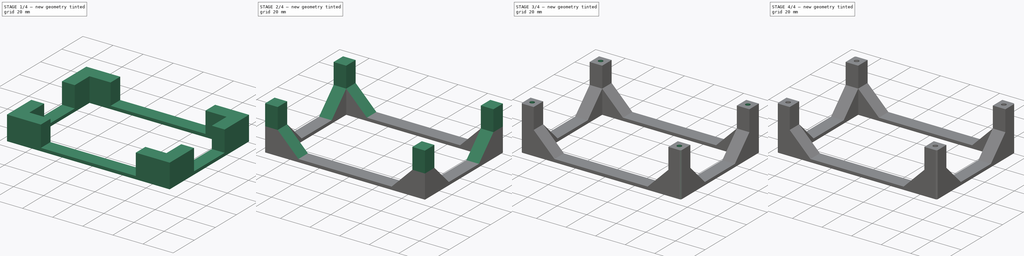
[diagram: build sequence overview — one tinted view per stage of 4, left to right]
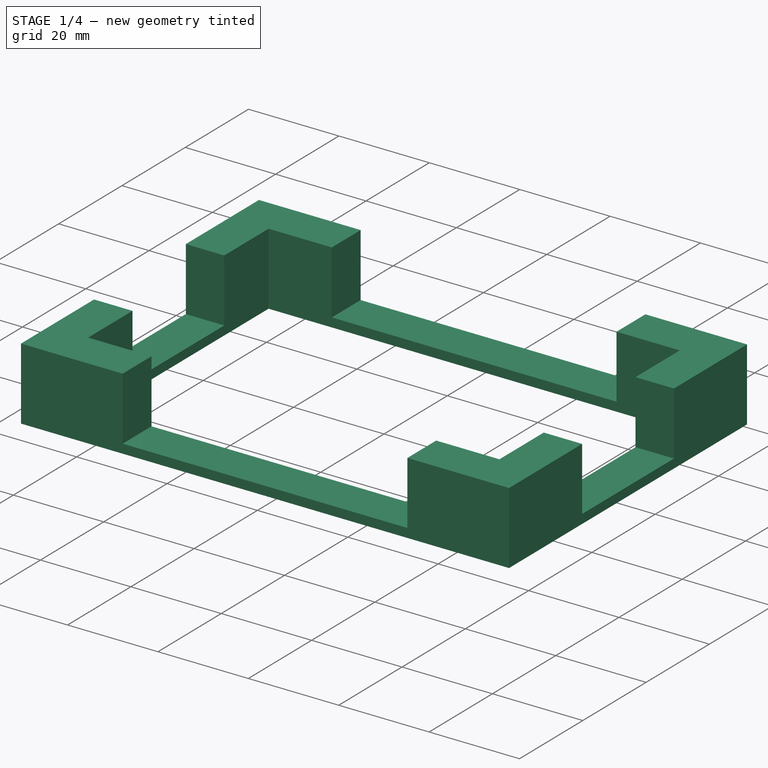
[diagram: stage 1 of 4 — iso view after this stage's code; geometry added in this stage tinted green]
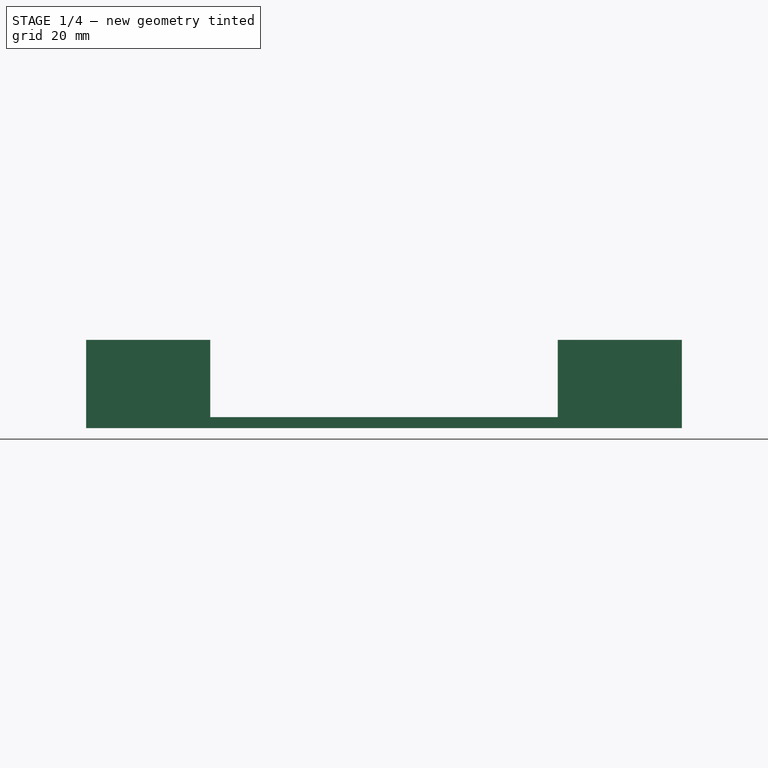
[diagram: stage 1 of 4 — front view after this stage's code; geometry added in this stage tinted green]
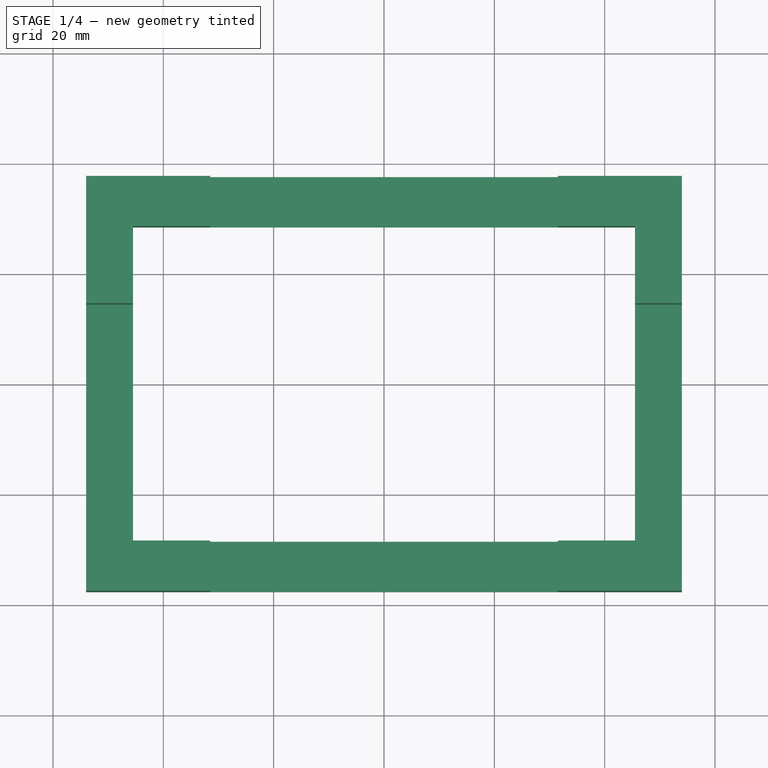
[diagram: stage 1 of 4 — top view after this stage's code; geometry added in this stage tinted green]
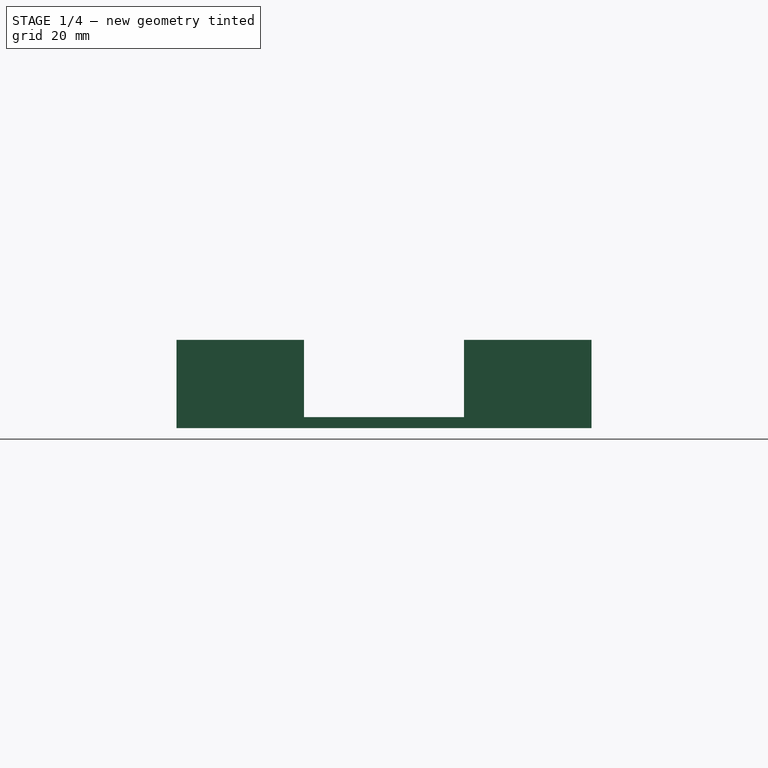
[diagram: stage 1 of 4 — right view after this stage's code; geometry added in this stage tinted green]
FCSTD DOCUMENT  (FreeCAD 0.19R24267 +99 (Git))
Label: LowerPiSupport
License: All rights reserved
LicenseURL: http://en.wikipedia.org/wiki/All_rights_reserved
objects: Sketcher::SketchObject×6, PartDesign::Fillet×4, PartDesign::Pad×3, PartDesign::Pocket×3, Spreadsheet::Sheet×1, PartDesign::Body×1, App::MeasureDistance×1
note: 27 computed .brp shape members not serialized (recipe doc carries the construction recipe); baked Part::Feature solids carry a one-line shape summary decoded from their .brp

FEATURE [Spreadsheet::Sheet] Spreadsheet
  cells = A2=lengthout; B2(lengthout)=108; A3=lengthin; B3(lengthin)=91; A4=widthout; B4(widthout)=75.2; A5=widthin; B5(widthin)=57; A7=screwholes; B7(screwholes)=3.1; A8=heightbase; B8(heightbase)=2; A9=heightcrewthingy; B9(heightcrewthingy)=28; A11=height support; B11(heightsupport)=14; A12=angle support; B12(anglesupport)=45
FEATURE [Sketcher::SketchObject] Sketch
  FullyConstrained = true
  MapMode = 5
  Support = -> [XY_Plane]
  expr: Constraints[16] = Spreadsheet.lengthin
  expr: Constraints[17] = Spreadsheet.widthin
  expr: Constraints[22] = Spreadsheet.lengthout / 2
  expr: Constraints[18] = Spreadsheet.lengthin / 2
  expr: Constraints[19] = Spreadsheet.widthin / 2
  expr: Constraints[23] = Spreadsheet.lengthout
  expr: Constraints[20] = Spreadsheet.widthout / 2
  expr: Constraints[21] = Spreadsheet.widthout
  sketch-geometry (8):
    g0: LineSegment StartX=-54 StartY=37.6 StartZ=0 EndX=54 EndY=37.6 EndZ=0
    g1: LineSegment StartX=54 StartY=37.6 StartZ=0 EndX=54 EndY=-37.6 EndZ=0
    g2: LineSegment StartX=54 StartY=-37.6 StartZ=0 EndX=-54 EndY=-37.6 EndZ=0
    g3: LineSegment StartX=-54 StartY=-37.6 StartZ=0 EndX=-54 EndY=37.6 EndZ=0
    g4: LineSegment StartX=-45.5 StartY=28.5 StartZ=0 EndX=45.5 EndY=28.5 EndZ=0
    g5: LineSegment StartX=45.5 StartY=28.5 StartZ=0 EndX=45.5 EndY=-28.5 EndZ=0
    g6: LineSegment StartX=45.5 StartY=-28.5 StartZ=0 EndX=-45.5 EndY=-28.5 EndZ=0
    g7: LineSegment StartX=-45.5 StartY=-28.5 StartZ=0 EndX=-45.5 EndY=28.5 EndZ=0
  constraints (24):
    c: Coincident(g0,g1)
    c: Coincident(g1,g2)
    c: Coincident(g2,g3)
    c: Coincident(g3,g0)
    c: Horizontal(g0)
    c: Horizontal(g2)
    c: Vertical(g1)
    c: Vertical(g3)
    c: Coincident(g4,g5)
    c: Coincident(g5,g6)
    c: Coincident(g6,g7)
    c: Coincident(g7,g4)
    c: Horizontal(g4)
    c: Horizontal(g6)
    c: Vertical(g5)
    c: Vertical(g7)
    c: DistanceX(g4,g4) = 91
    c: DistanceY(g5,g4) = 57
    c: DistanceX(g4,g-1) = 45.5
    c: DistanceY(g-1,g4) = 28.5
    c: DistanceY(g-1,g0) = 37.6
    c: DistanceY(g1,g1) = 75.2
    c: DistanceX(g0,g-1) = 54
    c: DistanceX(g0,g0) = 108
FEATURE [PartDesign::Pad] Pad
  Direction = (1,1,1)
  Length = 2
  Length2 = 100
  Profile = -> Sketch
  Type = 0
  expr: Length = Spreadsheet.heightbase
FEATURE [Sketcher::SketchObject] Sketch001
  FullyConstrained = true
  MapMode = 5
  Placement = pos=(0,0,2) rot=(0,0,1;0rad)
  Support = -> [Pad]
  expr: Constraints[70] = Spreadsheet.widthout / 2
  expr: Constraints[55] = Spreadsheet.lengthin / 2
  expr: Constraints[69] = Spreadsheet.widthout / 2
  expr: Constraints[63] = Spreadsheet.lengthout / 2
  expr: Constraints[49] = tan(Spreadsheet.anglesupport) * Spreadsheet.heightsupport
  expr: Constraints[65] = Spreadsheet.lengthout / 2
  expr: Constraints[64] = Spreadsheet.lengthout / 2
  expr: Constraints[62] = Spreadsheet.widthin / 2
  expr: Constraints[61] = Spreadsheet.widthin / 2
  expr: Constraints[60] = Spreadsheet.widthin / 2
  expr: Constraints[57] = Spreadsheet.lengthin / 2
  expr: Constraints[54] = Spreadsheet.lengthin / 2
  expr: Constraints[53] = tan(Spreadsheet.anglesupport) * Spreadsheet.heightsupport
  expr: Constraints[66] = Spreadsheet.lengthout / 2
  expr: Constraints[51] = tan(Spreadsheet.anglesupport) * Spreadsheet.heightsupport
  expr: Constraints[50] = tan(Spreadsheet.anglesupport) * Spreadsheet.heightsupport
  expr: Constraints[52] = tan(Spreadsheet.anglesupport) * Spreadsheet.heightsupport
  expr: Constraints[56] = Spreadsheet.lengthin / 2
  expr: Constraints[68] = Spreadsheet.widthout / 2
  expr: Constraints[48] = tan(Spreadsheet.anglesupport) * Spreadsheet.heightsupport
  expr: Constraints[59] = Spreadsheet.widthin / 2
  expr: Constraints[47] = tan(Spreadsheet.anglesupport) * Spreadsheet.heightsupport
  expr: Constraints[67] = Spreadsheet.widthout / 2
  expr: Constraints[46] = tan(Spreadsheet.anglesupport) * Spreadsheet.heightsupport
  sketch-geometry (24):
    g0: LineSegment StartX=-54 StartY=37.6 StartZ=0 EndX=-54 EndY=14.5 EndZ=0
    g1: LineSegment StartX=-54 StartY=14.5 StartZ=0 EndX=-45.5 EndY=14.5 EndZ=0
    g2: LineSegment StartX=-45.5 StartY=14.5 StartZ=0 EndX=-45.5 EndY=28.5 EndZ=0
    g3: LineSegment StartX=-45.5 StartY=28.5 StartZ=0 EndX=-31.5 EndY=28.5 EndZ=0
    g4: LineSegment StartX=-31.5 StartY=28.5 StartZ=0 EndX=-31.5 EndY=37.6 EndZ=0
    g5: LineSegment StartX=-31.5 StartY=37.6 StartZ=0 EndX=-54 EndY=37.6 EndZ=0
    g6: LineSegment StartX=31.5 StartY=37.6 StartZ=0 EndX=54 EndY=37.6 EndZ=0
    g7: LineSegment StartX=54 StartY=37.6 StartZ=0 EndX=54 EndY=14.5 EndZ=0
    g8: LineSegment StartX=54 StartY=14.5 StartZ=0 EndX=45.5 EndY=14.5 EndZ=0
    g9: LineSegment StartX=45.5 StartY=14.5 StartZ=0 EndX=45.5 EndY=28.5 EndZ=0
    g10: LineSegment StartX=45.5 StartY=28.5 StartZ=0 EndX=31.5 EndY=28.5 EndZ=0
    g11: LineSegment StartX=31.5 StartY=28.5 StartZ=0 EndX=31.5 EndY=37.6 EndZ=0
    g12: LineSegment StartX=45.5 StartY=-14.5 StartZ=0 EndX=45.5 EndY=-28.5 EndZ=0
    g13: LineSegment StartX=45.5 StartY=-28.5 StartZ=0 EndX=31.5 EndY=-28.5 EndZ=0
    g14: LineSegment StartX=31.5 StartY=-28.5 StartZ=0 EndX=31.5 EndY=-37.6 EndZ=0
    g15: LineSegment StartX=31.5 StartY=-37.6 StartZ=0 EndX=54 EndY=-37.6 EndZ=0
    g16: LineSegment StartX=54 StartY=-37.6 StartZ=0 EndX=54 EndY=-14.5 EndZ=0
    g17: LineSegment StartX=54 StartY=-14.5 StartZ=0 EndX=45.5 EndY=-14.5 EndZ=0
    g18: LineSegment StartX=-31.5 StartY=-28.5 StartZ=0 EndX=-45.5 EndY=-28.5 EndZ=0
    g19: LineSegment StartX=-45.5 StartY=-28.5 StartZ=0 EndX=-45.5 EndY=-14.5 EndZ=0
    g20: LineSegment StartX=-45.5 StartY=-14.5 StartZ=0 EndX=-54 EndY=-14.5 EndZ=0
    g21: LineSegment StartX=-54 StartY=-14.5 StartZ=0 EndX=-54 EndY=-37.6 EndZ=0
    g22: LineSegment StartX=-54 StartY=-37.6 StartZ=0 EndX=-31.5 EndY=-37.6 EndZ=0
    g23: LineSegment StartX=-31.5 StartY=-37.6 StartZ=0 EndX=-31.5 EndY=-28.5 EndZ=0
  constraints (72):
    c: Vertical(g0)
    c: Coincident(g1,g0)
    c: Horizontal(g1)
    c: Coincident(g2,g1)
    c: Vertical(g2)
    c: Coincident(g3,g2)
    c: Horizontal(g3)
    c: Coincident(g4,g3)
    c: Vertical(g4)
    c: Coincident(g5,g0)
    c: Horizontal(g5)
    c: Horizontal(g6)
    c: Coincident(g7,g6)
    c: Vertical(g7)
    c: Coincident(g8,g7)
    c: Horizontal(g8)
    c: Coincident(g9,g8)
    c: Vertical(g9)
    c: Coincident(g10,g9)
    c: Horizontal(g10)
    c: Coincident(g11,g10)
    c: Coincident(g11,g6)
    c: Vertical(g12)
    c: Coincident(g13,g12)
    c: Coincident(g13,g14)
    c: Vertical(g14)
    c: Coincident(g14,g15)
    c: Horizontal(g15)
    c: Coincident(g15,g16)
    c: Vertical(g16)
    c: Coincident(g16,g17)
    c: Coincident(g17,g12)
    c: Horizontal(g17)
    c: Horizontal(g18)
    c: Coincident(g18,g19)
    c: Vertical(g19)
    c: Coincident(g19,g20)
    c: Coincident(g20,g21)
    c: Vertical(g21)
    c: Coincident(g21,g22)
    c: Horizontal(g22)
    c: Coincident(g22,g23)
    c: Coincident(g23,g18)
    c: Vertical(g23)
    c: Horizontal(g13)
    c: Horizontal(g20)
    c: DistanceX(g13,g13) = 14
    c: DistanceX(g10,g10) = 14
    c: DistanceX(g3,g3) = 14
    c: DistanceX(g18,g18) = 14
    c: DistanceY(g9,g9) = 14
    c: DistanceY(g12,g12) = 14
    c: DistanceY(g2,g2) = 14
    c: DistanceY(g19,g19) = 14
    c: DistanceX(g-1,g12) = 45.5
    c: DistanceX(g-1,g8) = 45.5
    c: DistanceX(g1,g-1) = 45.5
    c: DistanceX(g19,g-1) = 45.5
    c: Vertical(g11)
    c: DistanceY(g-1,g10) = 28.5
    c: DistanceY(g13,g-1) = 28.5
    c: DistanceY(g18,g-1) = 28.5
    c: DistanceY(g-1,g3) = 28.5
    c: DistanceX(g-1,g7) = 54
    c: DistanceX(g-1,g16) = 54
    c: DistanceX(g20,g-1) = 54
    c: DistanceX(g0,g-1) = 54
    c: DistanceY(g-1,g4) = 37.6
    c: DistanceY(g-1,g6) = 37.6
    c: DistanceY(g14,g-1) = 37.6
    c: DistanceY(g22,g-1) = 37.6
    c: Coincident(g5,g4)
FEATURE [PartDesign::Pad] Pad001
  BaseFeature = -> Pad
  Direction = (1,1,1)
  Length = 14
  Length2 = 100
  Profile = -> Sketch001
  Type = 0
  expr: Length = Spreadsheet.heightsupport
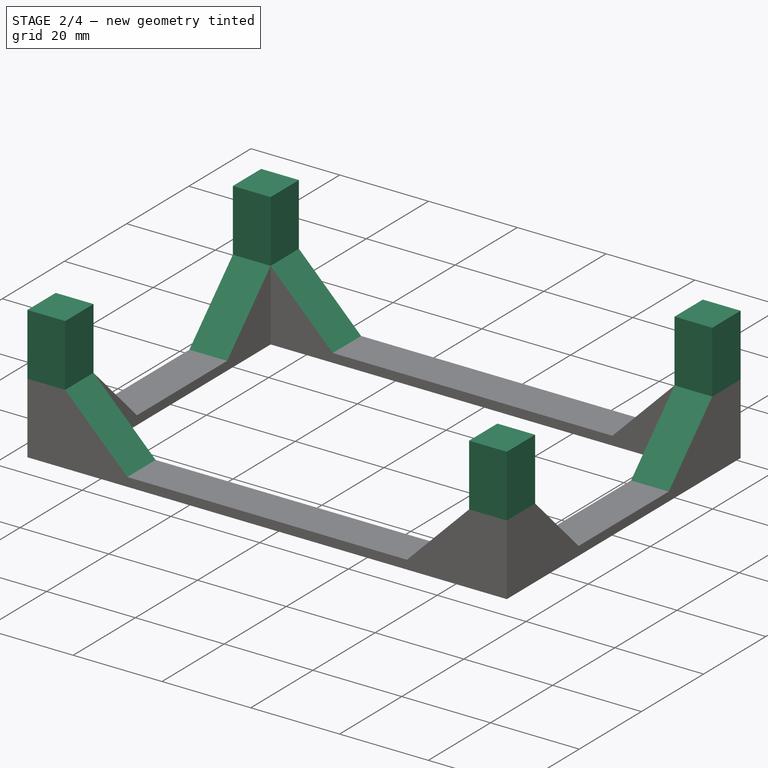
[diagram: stage 2 of 4 — iso view after this stage's code; geometry added in this stage tinted green]
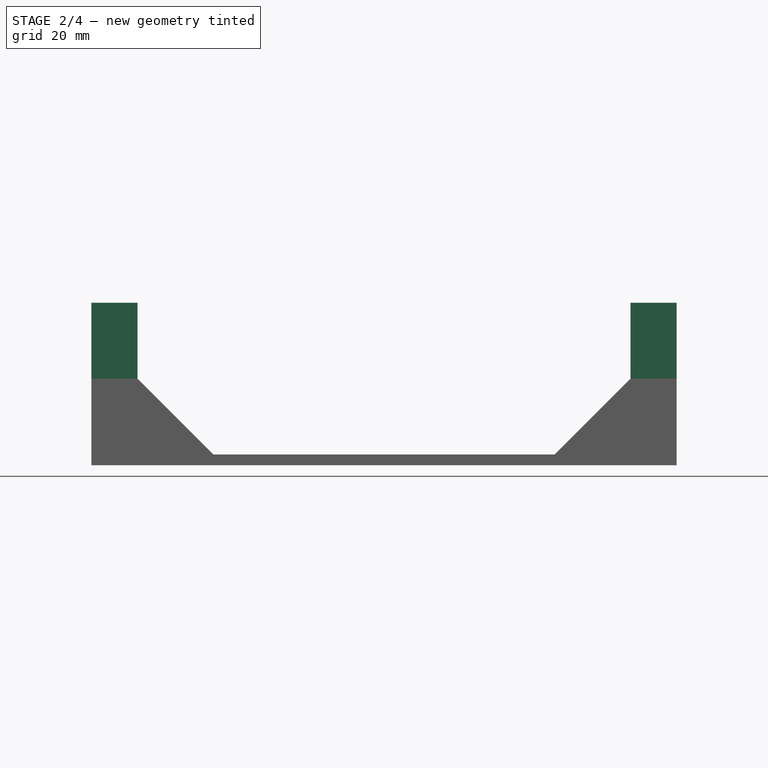
[diagram: stage 2 of 4 — front view after this stage's code; geometry added in this stage tinted green]
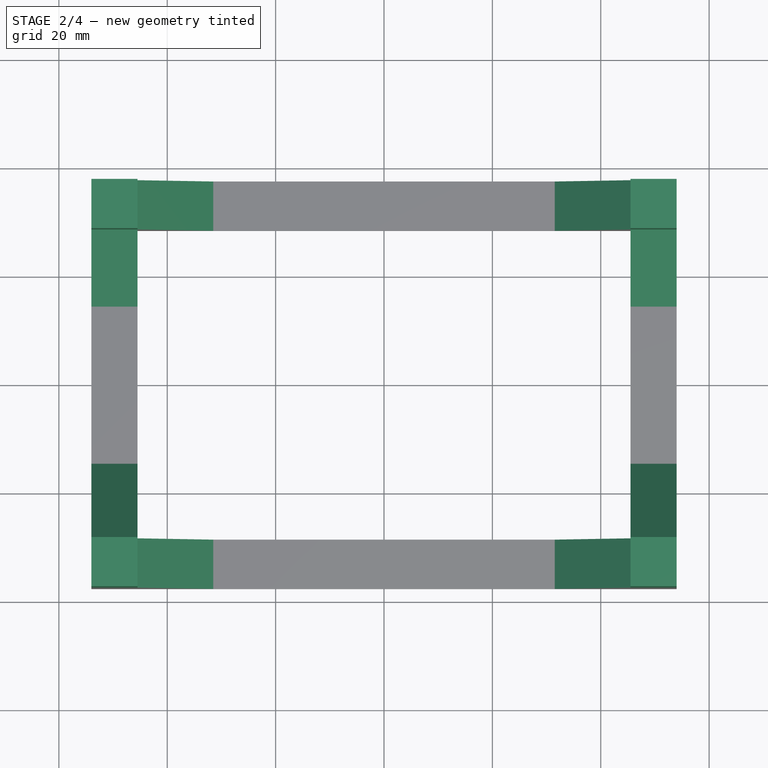
[diagram: stage 2 of 4 — top view after this stage's code; geometry added in this stage tinted green]
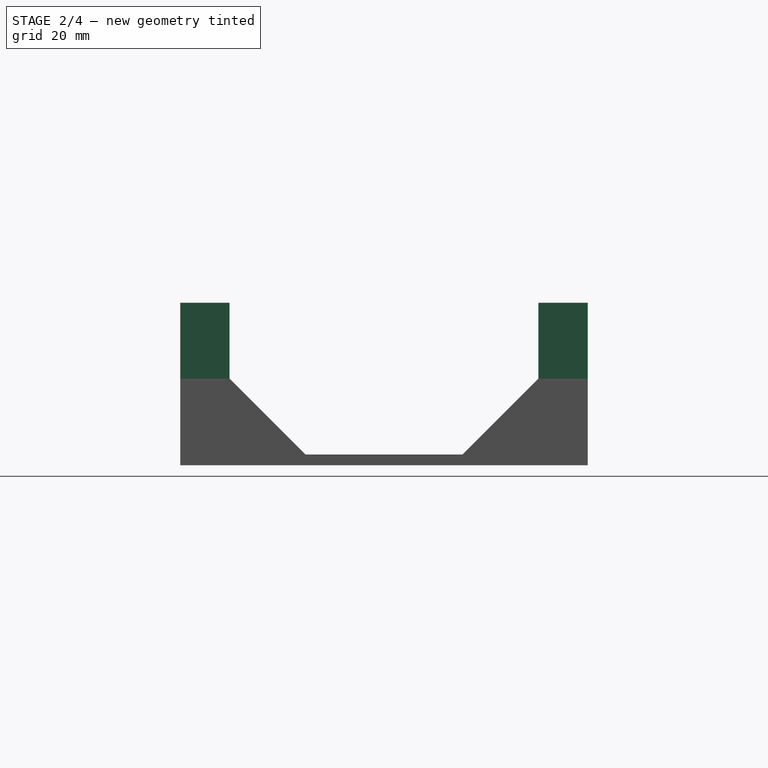
[diagram: stage 2 of 4 — right view after this stage's code; geometry added in this stage tinted green]
FEATURE [Sketcher::SketchObject] Sketch002
  FullyConstrained = true
  MapMode = 5
  Placement = pos=(0,-37.6,0) rot=(1,0,0;1.5708rad)
  Support = -> [Pad001]
  expr: Constraints[16] = Spreadsheet.anglesupport
  expr: Constraints[15] = Spreadsheet.heightsupport
  expr: Constraints[17] = Spreadsheet.anglesupport
  expr: Constraints[14] = Spreadsheet.heightbase
  expr: Constraints[13] = Spreadsheet.heightbase
  expr: Constraints[12] = Spreadsheet.heightsupport
  expr: Constraints[11] = Spreadsheet.lengthin / 2 - tan(Spreadsheet.anglesupport) * Spreadsheet.heightsupport
  expr: Constraints[10] = Spreadsheet.lengthin / 2 - tan(Spreadsheet.anglesupport) * Spreadsheet.heightsupport
  sketch-geometry (6):
    g0: LineSegment StartX=-45.5 StartY=16 StartZ=0 EndX=-31.5 EndY=16 EndZ=0
    g1: LineSegment StartX=-31.5 StartY=16 StartZ=0 EndX=-31.5 EndY=2 EndZ=0
    g2: LineSegment StartX=-31.5 StartY=2 StartZ=0 EndX=-45.5 EndY=16 EndZ=0
    g3: LineSegment StartX=31.5 StartY=16 StartZ=0 EndX=31.5 EndY=2 EndZ=0
    g4: LineSegment StartX=31.5 StartY=2 StartZ=0 EndX=45.5 EndY=16 EndZ=0
    g5: LineSegment StartX=45.5 StartY=16 StartZ=0 EndX=31.5 EndY=16 EndZ=0
  constraints (18):
    c: Coincident(g0,g1)
    c: Vertical(g1)
    c: Coincident(g1,g2)
    c: Coincident(g2,g0)
    c: Vertical(g3)
    c: Coincident(g3,g4)
    c: Coincident(g4,g5)
    c: Coincident(g5,g3)
    c: Horizontal(g5)
    c: Horizontal(g0)
    c: DistanceX(g-1,g3) = 31.5
    c: DistanceX(g1,g-1) = 31.5
    c: DistanceY(g3,g3) = 14
    c: DistanceY(g-1,g3) = 2
    c: DistanceY(g-1,g1) = 2
    c: DistanceY(g1,g1) = 14
    c: Angle(g4,g3) = 0.785398
    c: Angle(g1,g2) = 0.785398
FEATURE [PartDesign::Pocket] Pocket
  BaseFeature = -> Pad001
  Length = 75.2
  Length2 = 100
  Profile = -> Sketch002
  Type = 0
  expr: Length = Spreadsheet.widthout
FEATURE [Sketcher::SketchObject] Sketch003
  FullyConstrained = true
  MapMode = 5
  Placement = pos=(54,0,0) rot=(0.57735,0.57735,0.57735;2.0944rad)
  Support = -> [Pocket]
  expr: Constraints[9] = Spreadsheet.heightsupport
  expr: Constraints[14] = Spreadsheet.widthin / 2 - tan(Spreadsheet.anglesupport) * Spreadsheet.heightsupport
  expr: Constraints[17] = Spreadsheet.anglesupport
  expr: Constraints[10] = Spreadsheet.heightsupport
  expr: Constraints[11] = Spreadsheet.heightbase
  expr: Constraints[13] = Spreadsheet.heightbase
  expr: Constraints[15] = Spreadsheet.widthin / 2 - tan(Spreadsheet.anglesupport) * Spreadsheet.heightsupport
  expr: Constraints[16] = Spreadsheet.anglesupport
  sketch-geometry (6):
    g0: LineSegment StartX=-28.5 StartY=16 StartZ=0 EndX=-14.5 EndY=16 EndZ=0
    g1: LineSegment StartX=-14.5 StartY=16 StartZ=0 EndX=-14.5 EndY=2 EndZ=0
    g2: LineSegment StartX=-14.5 StartY=2 StartZ=0 EndX=-28.5 EndY=16 EndZ=0
    g3: LineSegment StartX=14.5 StartY=2 StartZ=0 EndX=14.5 EndY=16 EndZ=0
    g4: LineSegment StartX=14.5 StartY=16 StartZ=0 EndX=28.5 EndY=16 EndZ=0
    g5: LineSegment StartX=28.5 StartY=16 StartZ=0 EndX=14.5 EndY=2 EndZ=0
  constraints (18):
    c: Horizontal(g0)
    c: Coincident(g0,g1)
    c: Vertical(g1)
    c: Coincident(g1,g2)
    c: Coincident(g2,g0)
    c: Horizontal(g4)
    c: Coincident(g4,g5)
    c: Coincident(g4,g3)
    c: Vertical(g3)
    c: DistanceY(g3,g3) = 14
    c: DistanceY(g1,g1) = 14
    c: DistanceY(g-1,g3) = 2
    c: Coincident(g5,g3)
    c: DistanceY(g-1,g1) = 2
    c: DistanceX(g-1,g3) = 14.5
    c: DistanceX(g1,g-1) = 14.5
    c: Angle(g5,g3) = 0.785398
    c: Angle(g1,g2) = 0.785398
FEATURE [PartDesign::Pocket] Pocket001
  BaseFeature = -> Pocket
  Length = 108
  Length2 = 100
  Profile = -> Sketch003
  Type = 0
  expr: Length = Spreadsheet.lengthout
FEATURE [Sketcher::SketchObject] Sketch004
  FullyConstrained = true
  MapMode = 5
  Placement = pos=(0,0,16) rot=(0,0,1;0rad)
  Support = -> [Pocket001]
  expr: Constraints[32] = Spreadsheet.lengthin / 2
  expr: Constraints[38] = Spreadsheet.lengthout / 2
  expr: Constraints[33] = Spreadsheet.lengthin / 2
  expr: Constraints[45] = Spreadsheet.widthin / 2
  expr: Constraints[34] = Spreadsheet.lengthin / 2
  expr: Constraints[36] = Spreadsheet.lengthout / 2
  expr: Constraints[43] = Spreadsheet.widthout / 2
  expr: Constraints[35] = Spreadsheet.lengthin / 2
  expr: Constraints[37] = Spreadsheet.lengthout / 2
  expr: Constraints[39] = Spreadsheet.lengthout / 2
  expr: Constraints[40] = Spreadsheet.widthout / 2
  expr: Constraints[41] = Spreadsheet.widthout / 2
  expr: Constraints[42] = Spreadsheet.widthout / 2
  expr: Constraints[44] = Spreadsheet.widthin / 2
  expr: Constraints[46] = Spreadsheet.widthin / 2
  expr: Constraints[47] = Spreadsheet.widthin / 2
  sketch-geometry (16):
    g0: LineSegment StartX=-54 StartY=37.6 StartZ=0 EndX=-45.5 EndY=37.6 EndZ=0
    g1: LineSegment StartX=-45.5 StartY=37.6 StartZ=0 EndX=-45.5 EndY=28.5 EndZ=0
    g2: LineSegment StartX=-45.5 StartY=28.5 StartZ=0 EndX=-54 EndY=28.5 EndZ=0
    g3: LineSegment StartX=-54 StartY=28.5 StartZ=0 EndX=-54 EndY=37.6 EndZ=0
    g4: LineSegment StartX=45.5 StartY=37.6 StartZ=0 EndX=54 EndY=37.6 EndZ=0
    g5: LineSegment StartX=54 StartY=37.6 StartZ=0 EndX=54 EndY=28.5 EndZ=0
    g6: LineSegment StartX=54 StartY=28.5 StartZ=0 EndX=45.5 EndY=28.5 EndZ=0
    g7: LineSegment StartX=45.5 StartY=28.5 StartZ=0 EndX=45.5 EndY=37.6 EndZ=0
    g8: LineSegment StartX=45.5 StartY=-28.5 StartZ=0 EndX=54 EndY=-28.5 EndZ=0
    g9: LineSegment StartX=54 StartY=-28.5 StartZ=0 EndX=54 EndY=-37.6 EndZ=0
    g10: LineSegment StartX=54 StartY=-37.6 StartZ=0 EndX=45.5 EndY=-37.6 EndZ=0
    g11: LineSegment StartX=45.5 StartY=-37.6 StartZ=0 EndX=45.5 EndY=-28.5 EndZ=0
    g12: LineSegment StartX=-54 StartY=-28.5 StartZ=0 EndX=-45.5 EndY=-28.5 EndZ=0
    g13: LineSegment StartX=-45.5 StartY=-28.5 StartZ=0 EndX=-45.5 EndY=-37.6 EndZ=0
    g14: LineSegment StartX=-45.5 StartY=-37.6 StartZ=0 EndX=-54 EndY=-37.6 EndZ=0
    g15: LineSegment StartX=-54 StartY=-37.6 StartZ=0 EndX=-54 EndY=-28.5 EndZ=0
  constraints (48):
    c: Coincident(g0,g1)
    c: Coincident(g1,g2)
    c: Coincident(g2,g3)
    c: Coincident(g3,g0)
    c: Horizontal(g0)
    c: Horizontal(g2)
    c: Vertical(g1)
    c: Vertical(g3)
    c: Coincident(g4,g5)
    c: Coincident(g5,g6)
    c: Coincident(g6,g7)
    c: Coincident(g7,g4)
    c: Horizontal(g4)
    c: Horizontal(g6)
    c: Vertical(g5)
    c: Vertical(g7)
    c: Coincident(g8,g9)
    c: Coincident(g9,g10)
    c: Coincident(g10,g11)
    c: Coincident(g11,g8)
    c: Horizontal(g8)
    c: Horizontal(g10)
    c: Vertical(g9)
    c: Vertical(g11)
    c: Coincident(g12,g13)
    c: Coincident(g13,g14)
    c: Coincident(g14,g15)
    c: Coincident(g15,g12)
    c: Horizontal(g12)
    c: Horizontal(g14)
    c: Vertical(g13)
    c: Vertical(g15)
    c: DistanceX(g1,g-1) = 45.5
    c: DistanceX(g-1,g6) = 45.5
    c: DistanceX(g-1,g8) = 45.5
    c: DistanceX(g12,g-1) = 45.5
    c: DistanceX(g0,g-1) = 54
    c: DistanceX(g-1,g4) = 54
    c: DistanceX(g-1,g9) = 54
    c: DistanceX(g14,g-1) = 54
    c: DistanceY(g-1,g0) = 37.6
    c: DistanceY(g-1,g4) = 37.6
    c: DistanceY(g9,g-1) = 37.6
    c: DistanceY(g14,g-1) = 37.6
    c: DistanceY(g-1,g1) = 28.5
    c: DistanceY(g-1,g6) = 28.5
    c: DistanceY(g8,g-1) = 28.5
    c: DistanceY(g12,g-1) = 28.5
FEATURE [PartDesign::Pad] Pad002
  BaseFeature = -> Pocket001
  Direction = (1,1,1)
  Length = 14
  Length2 = 100
  Profile = -> Sketch004
  Type = 0
  expr: Length = Spreadsheet.heightcrewthingy - Spreadsheet.heightsupport
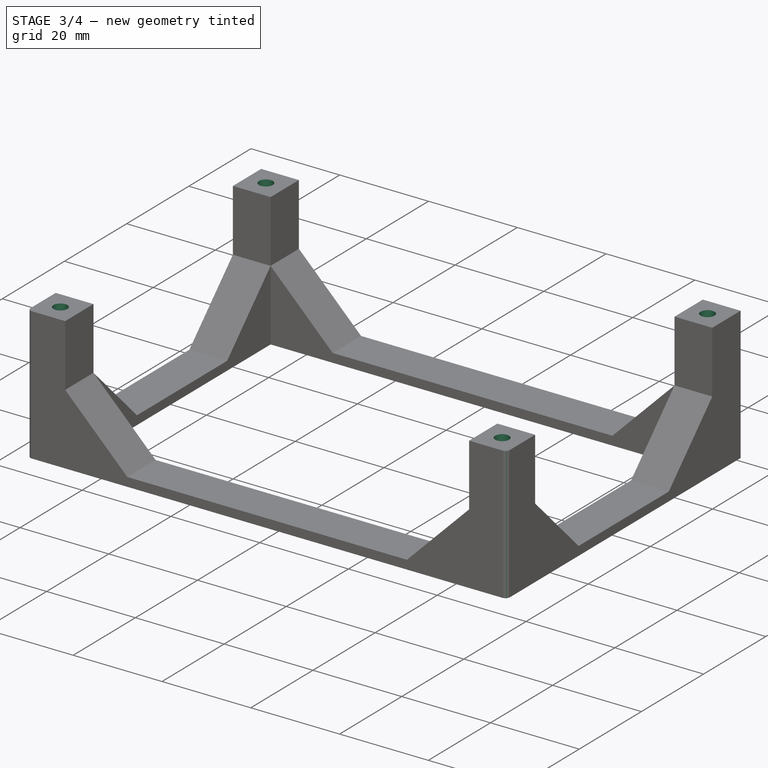
[diagram: stage 3 of 4 — iso view after this stage's code; geometry added in this stage tinted green]
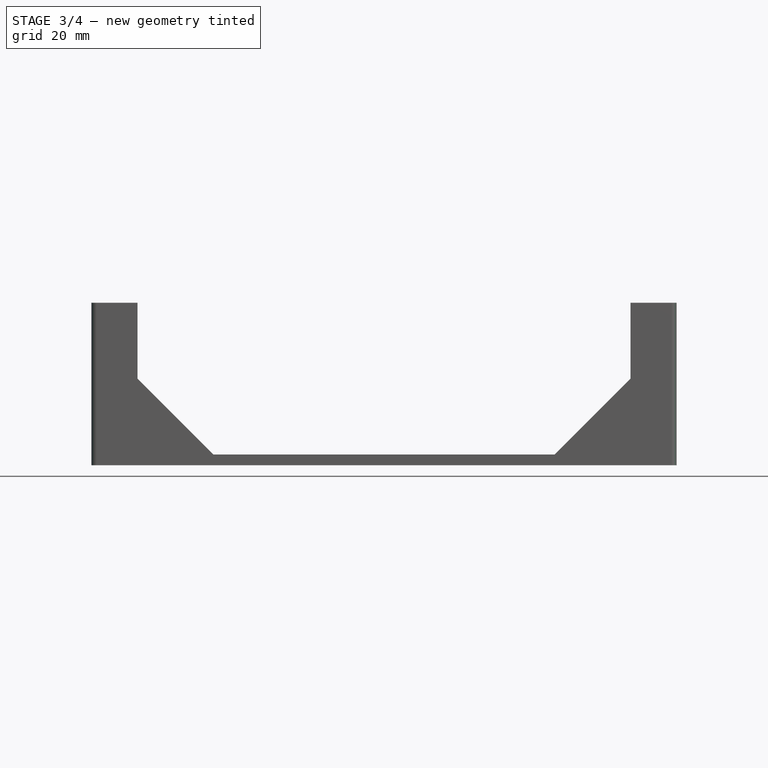
[diagram: stage 3 of 4 — front view after this stage's code; geometry added in this stage tinted green]
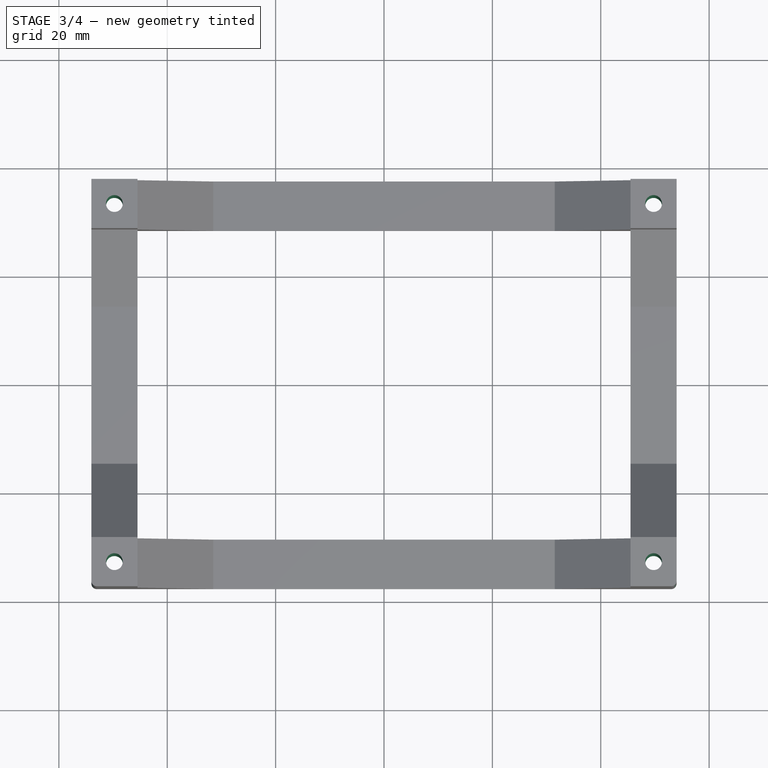
[diagram: stage 3 of 4 — top view after this stage's code; geometry added in this stage tinted green]
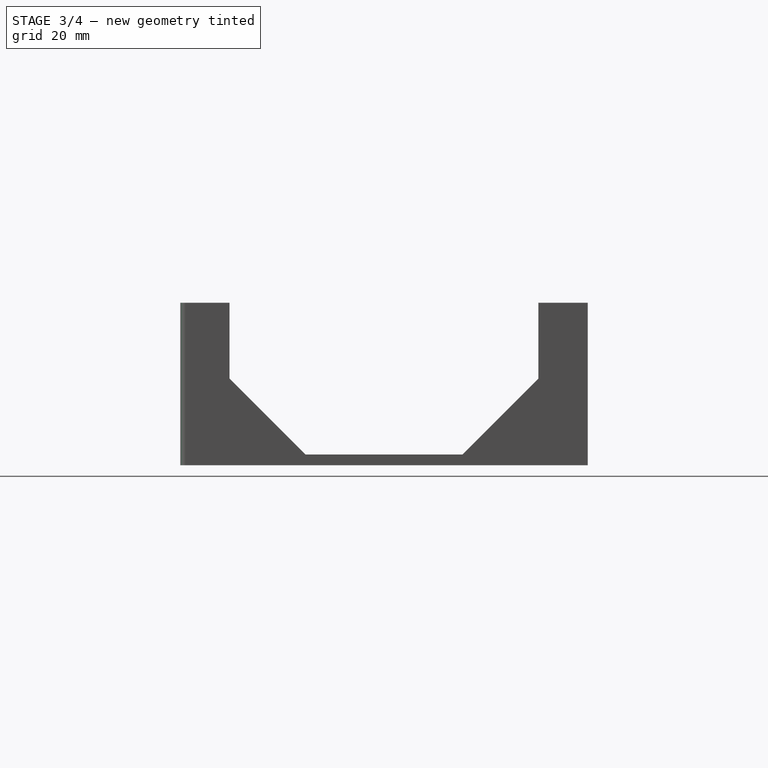
[diagram: stage 3 of 4 — right view after this stage's code; geometry added in this stage tinted green]
FEATURE [Sketcher::SketchObject] Sketch005
  FullyConstrained = true
  MapMode = 5
  Placement = pos=(0,0,30) rot=(0,0,1;0rad)
  Support = -> [Pad002]
  expr: Constraints[0] = Spreadsheet.screwholes / 2
  expr: Constraints[1] = Spreadsheet.screwholes / 2
  expr: Constraints[2] = Spreadsheet.screwholes / 2
  expr: Constraints[5] = Spreadsheet.lengthin / 2 + (Spreadsheet.lengthout - Spreadsheet.lengthin) / 4
  expr: Constraints[10] = Spreadsheet.widthin / 2 + (Spreadsheet.widthout - Spreadsheet.widthin) / 4
  expr: Constraints[3] = Spreadsheet.screwholes / 2
  expr: Constraints[4] = Spreadsheet.lengthin / 2 + (Spreadsheet.lengthout - Spreadsheet.lengthin) / 4
  expr: Constraints[6] = Spreadsheet.lengthin / 2 + (Spreadsheet.lengthout - Spreadsheet.lengthin) / 4
  expr: Constraints[7] = Spreadsheet.lengthin / 2 + (Spreadsheet.lengthout - Spreadsheet.lengthin) / 4
  expr: Constraints[8] = Spreadsheet.widthin / 2 + (Spreadsheet.widthout - Spreadsheet.widthin) / 4
  expr: Constraints[9] = Spreadsheet.widthin / 2 + (Spreadsheet.widthout - Spreadsheet.widthin) / 4
  expr: Constraints[11] = Spreadsheet.widthin / 2 + (Spreadsheet.widthout - Spreadsheet.widthin) / 4
  sketch-geometry (4):
    g0: Circle CenterX=-49.75 CenterY=33.05 CenterZ=0 NormalX=0 NormalY=0 NormalZ=1 AngleXU=0 Radius=1.55
    g1: Circle CenterX=49.75 CenterY=33.05 CenterZ=0 NormalX=0 NormalY=0 NormalZ=1 AngleXU=0 Radius=1.55
    g2: Circle CenterX=49.75 CenterY=-33.05 CenterZ=0 NormalX=0 NormalY=0 NormalZ=1 AngleXU=0 Radius=1.55
    g3: Circle CenterX=-49.75 CenterY=-33.05 CenterZ=0 NormalX=0 NormalY=0 NormalZ=1 AngleXU=0 Radius=1.55
  constraints (12):
    c: Radius(g1) = 1.55
    c: Radius(g2) = 1.55
    c: Radius(g3) = 1.55
    c: Radius(g0) = 1.55
    c: DistanceX(g0,g-1) = 49.75
    c: DistanceX(g-1,g1) = 49.75
    c: DistanceX(g-1,g2) = 49.75
    c: DistanceX(g3,g-1) = 49.75
    c: DistanceY(g-1,g0) = 33.05
    c: DistanceY(g-1,g1) = 33.05
    c: DistanceY(g2,g-1) = 33.05
    c: DistanceY(g3,g-1) = 33.05
FEATURE [PartDesign::Pocket] Pocket002
  BaseFeature = -> Pad002
  Length = 30
  Length2 = 100
  Profile = -> Sketch005
  Type = 0
  expr: Length = Spreadsheet.heightcrewthingy + Spreadsheet.heightbase
FEATURE [PartDesign::Fillet] Fillet
  Base = -> Pocket002 [Edge91]
  BaseFeature = -> Pocket002
  Radius = 1
  SupportTransform = false
FEATURE [PartDesign::Fillet] Fillet001
  Base = -> Fillet [Edge131]
  BaseFeature = -> Fillet
  Radius = 1
  SupportTransform = false
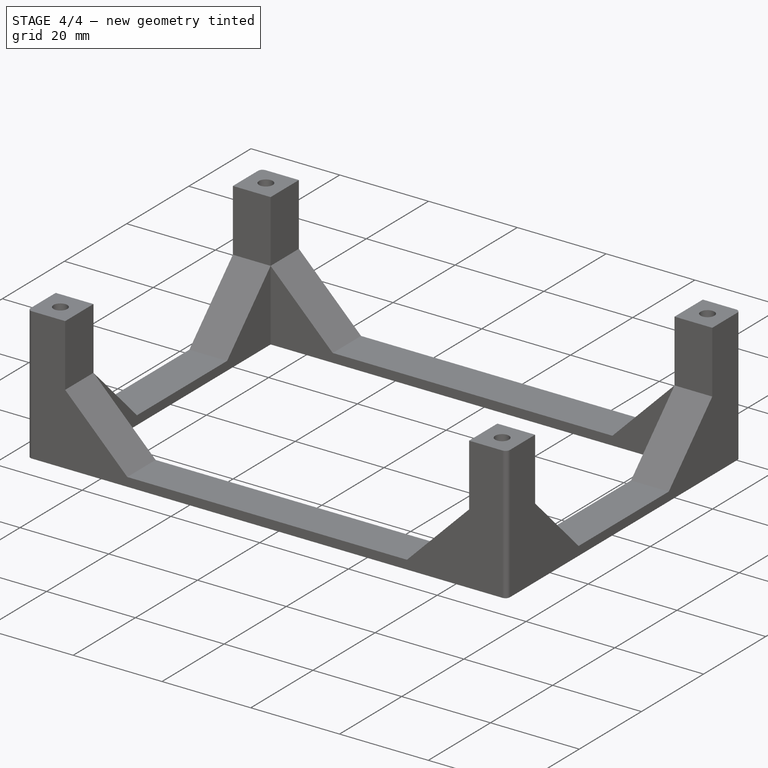
[diagram: stage 4 of 4 — iso view after this stage's code; geometry added in this stage tinted green]
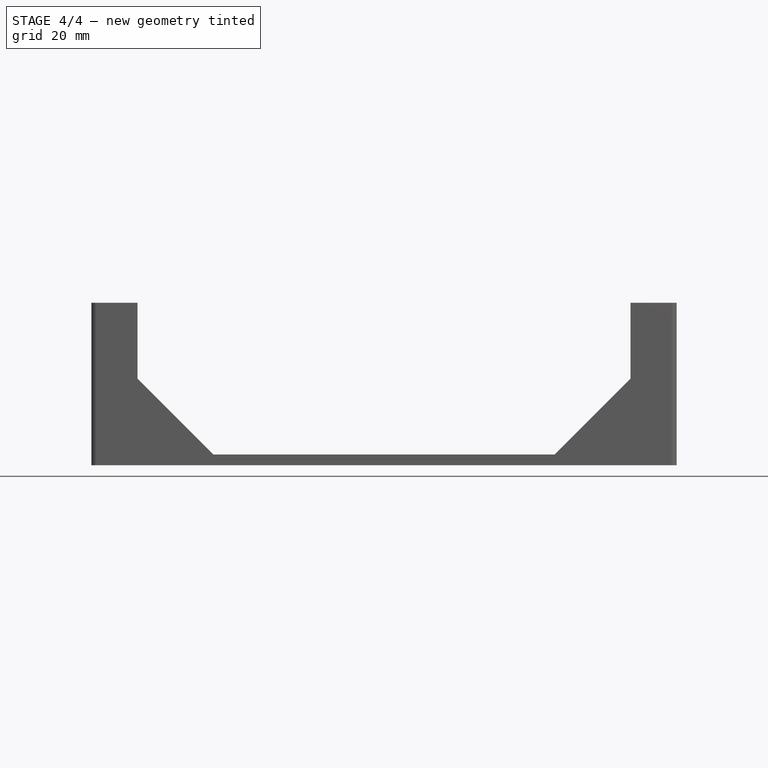
[diagram: stage 4 of 4 — front view after this stage's code; geometry added in this stage tinted green]
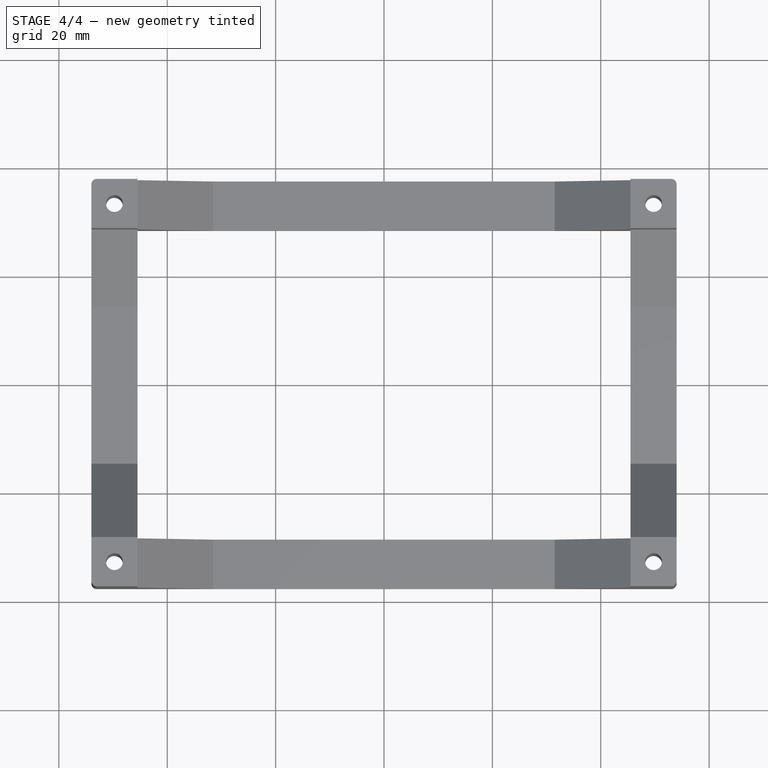
[diagram: stage 4 of 4 — top view after this stage's code; geometry added in this stage tinted green]
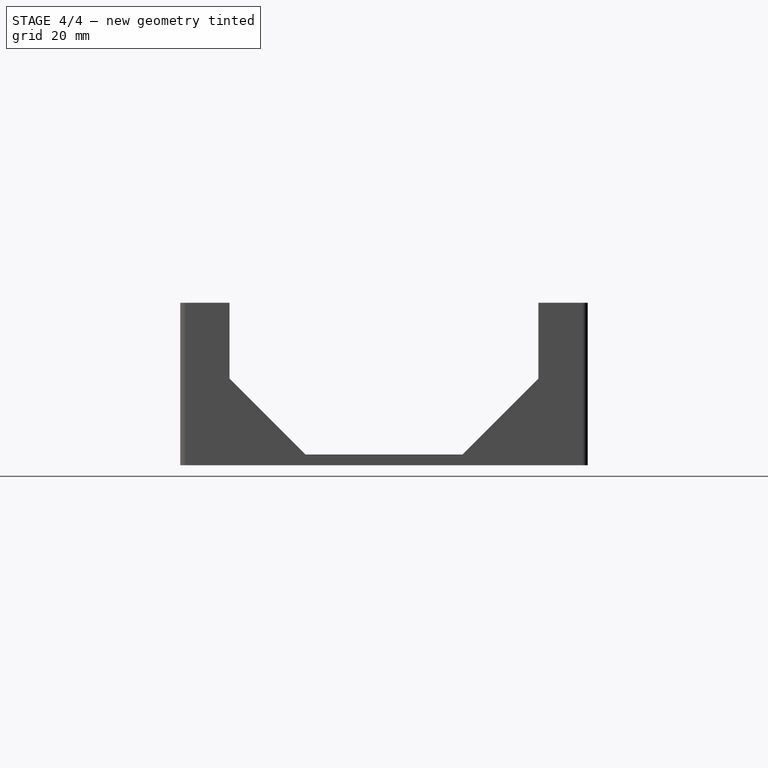
[diagram: stage 4 of 4 — right view after this stage's code; geometry added in this stage tinted green]
FEATURE [PartDesign::Fillet] Fillet002
  Base = -> Fillet001 [Edge75]
  BaseFeature = -> Fillet001
  Radius = 1
  SupportTransform = false
FEATURE [PartDesign::Fillet] Fillet003
  Base = -> Fillet002 [Edge137]
  BaseFeature = -> Fillet002
  Radius = 1
  SupportTransform = false
FEATURE [PartDesign::Body] Body
  Group = -> [Sketch,Pad,Sketch001,Pad001,Sketch002,Pocket,Sketch003,Pocket001,Sketch004,Pad002,Sketch005,Pocket002,Fillet,Fillet001,Fillet002,Fillet003]
  Origin = -> Origin
  Tip = -> Fillet003
FEATURE [App::MeasureDistance] Distance  label="Distance: 69.18 mm"
  Distance = 69.1774
  P1 = (49.9368,34.5887,0)
  P2 = (49.9368,-34.5887,0)
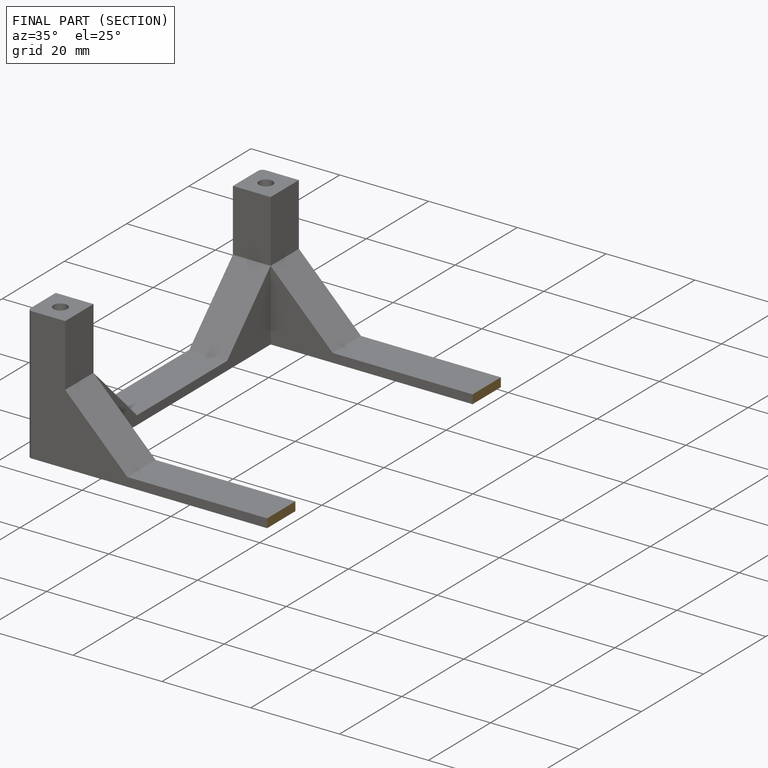
[diagram: finished part — half-section view (interior)]
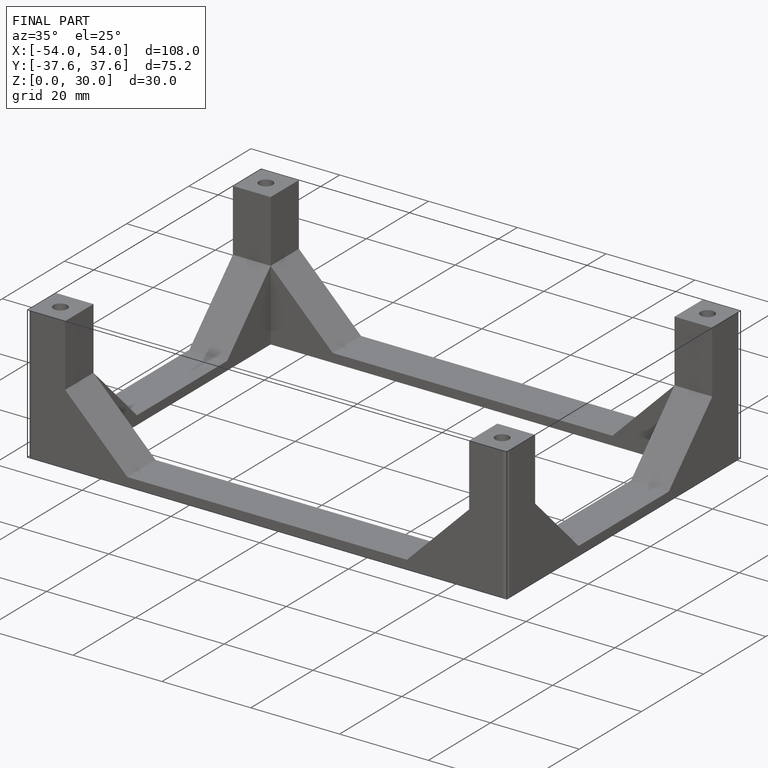
[diagram: finished part — iso view with bounding-box wireframe]
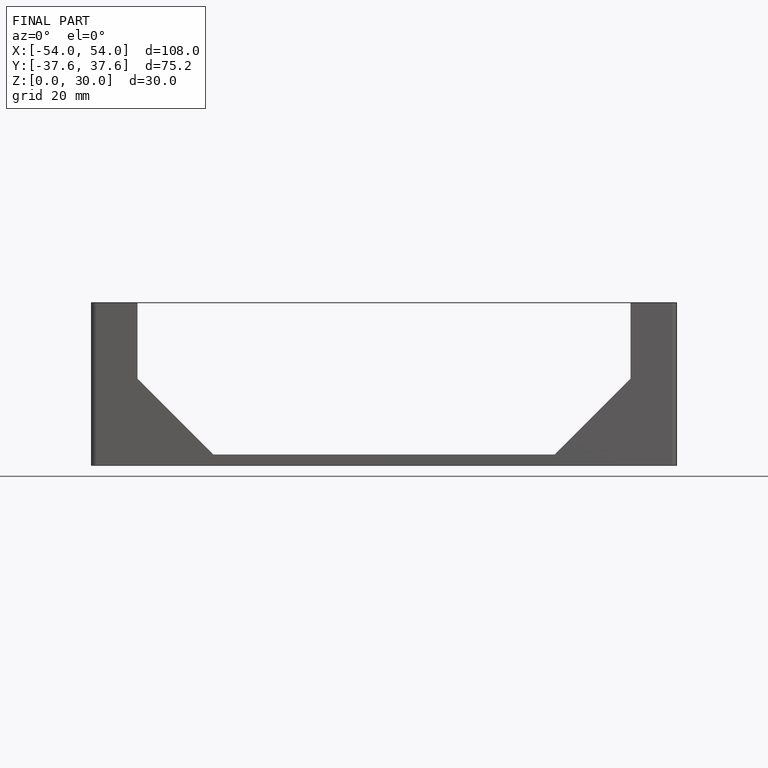
[diagram: finished part — front view with bounding-box wireframe]
